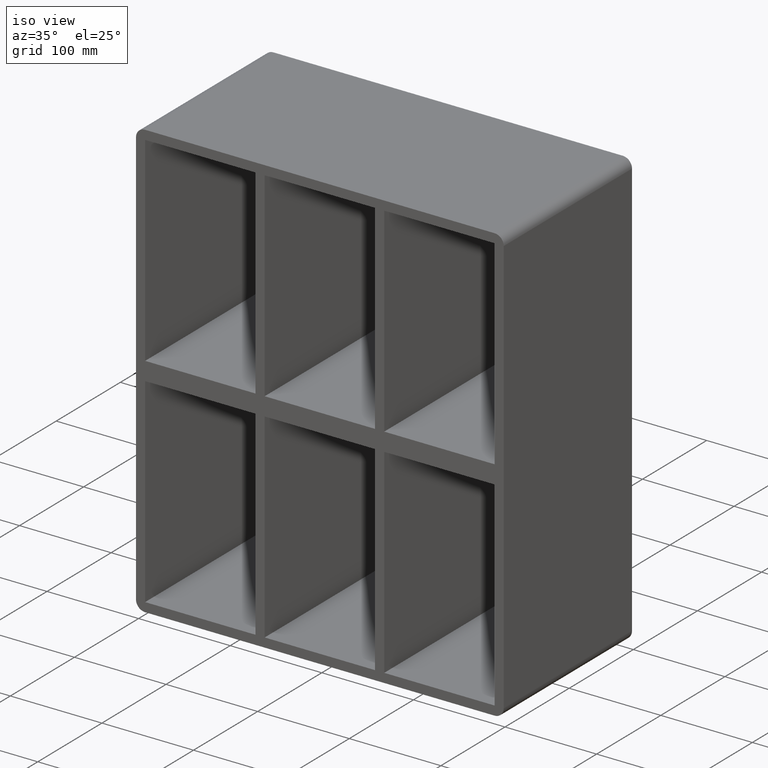
[diagram: clean part render]
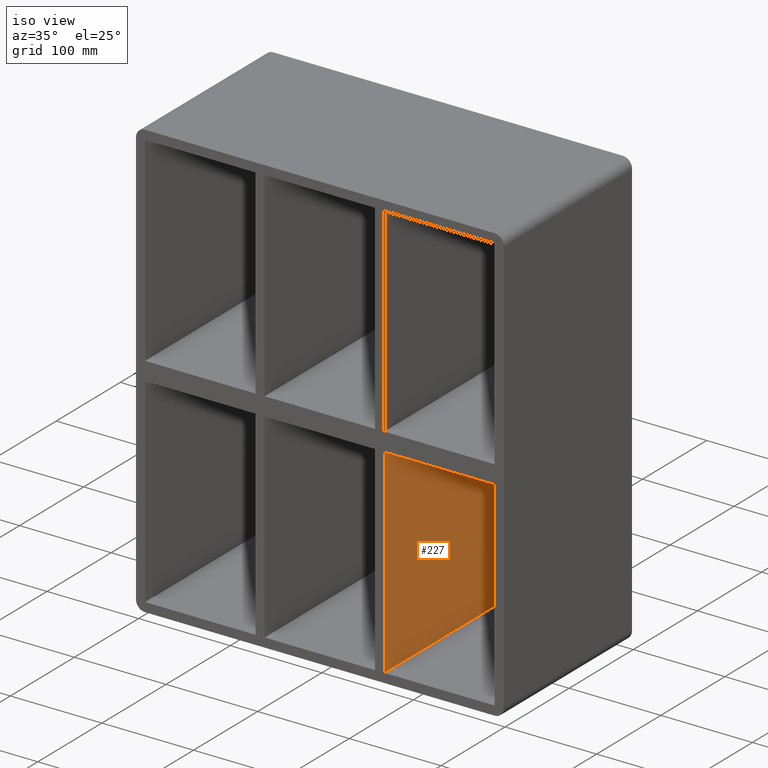
[diagram: same view with one face highlighted and labeled with its STEP entity id]
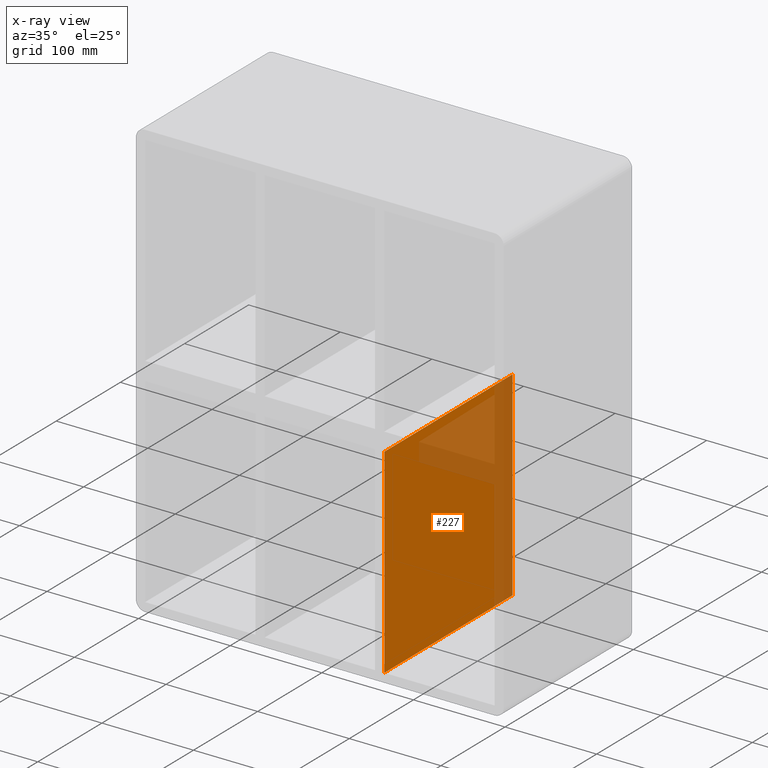
[diagram: x-ray of the same camera — body ghosted, the highlighted face saturated]
A machine part, iso view. The second image highlights one B-rep face of the part: STEP entity #227.
The next image is the same camera in x-ray: the body ghosted, the highlighted face saturated — about 29% of this face is hidden behind the body in this view.
In plain terms, the highlighted planar face has unit normal (1, 0, 0).
Its self-contained STEP definition (entity closure, byte-faithful):
#188=CARTESIAN_POINT('',(70.249999999985448,-3.0,228.0));
#189=DIRECTION('',(1.0,0.0,0.0));
#190=DIRECTION('',(0.0,0.0,-1.0));
#191=AXIS2_PLACEMENT_3D('',#188,#189,#190);
#192=PLANE('',#191);
#193=CARTESIAN_POINT('',(70.249999999985448,-3.0,-10.00000000001787));
#194=VERTEX_POINT('',#193);
#195=CARTESIAN_POINT('',(70.249999999985448,197.0,-10.00000000001787));
#196=VERTEX_POINT('',#195);
#197=CARTESIAN_POINT('',(70.249999999985448,-3.0,-10.00000000001787));
#198=DIRECTION('',(0.0,1.0,0.0));
#199=VECTOR('',#198,200.0);
#200=LINE('',#197,#199);
#201=EDGE_CURVE('',#194,#196,#200,.T.);
#202=ORIENTED_EDGE('',*,*,#201,.F.);
#203=CARTESIAN_POINT('',(70.249999999985448,-3.0,-227.9999999999707));
#204=VERTEX_POINT('',#203);
#205=CARTESIAN_POINT('',(70.249999999985448,-3.0,-10.000000000017877));
#206=DIRECTION('',(0.0,0.0,-1.0));
#207=VECTOR('',#206,217.99999999995279);
#208=LINE('',#205,#207);
#209=EDGE_CURVE('',#194,#204,#208,.T.);
#210=ORIENTED_EDGE('',*,*,#209,.T.);
#211=CARTESIAN_POINT('',(70.249999999985448,197.0,-227.99999999997067));
#212=VERTEX_POINT('',#211);
#213=CARTESIAN_POINT('',(70.249999999985448,196.99999999999997,-227.99999999999994));
#214=DIRECTION('',(0.0,-1.0,0.0));
#215=VECTOR('',#214,199.99999999999997);
#216=LINE('',#213,#215);
#217=EDGE_CURVE('',#212,#204,#216,.T.);
#218=ORIENTED_EDGE('',*,*,#217,.F.);
#219=CARTESIAN_POINT('',(70.249999999985448,197.0,-10.000000000017877));
#220=DIRECTION('',(0.0,0.0,-1.0));
#221=VECTOR('',#220,217.99999999995279);
#222=LINE('',#219,#221);
#223=EDGE_CURVE('',#196,#212,#222,.T.);
#224=ORIENTED_EDGE('',*,*,#223,.F.);
#225=EDGE_LOOP('',(#202,#210,#218,#224));
#226=FACE_OUTER_BOUND('',#225,.T.);
#227=ADVANCED_FACE('',(#226),#192,.T.);